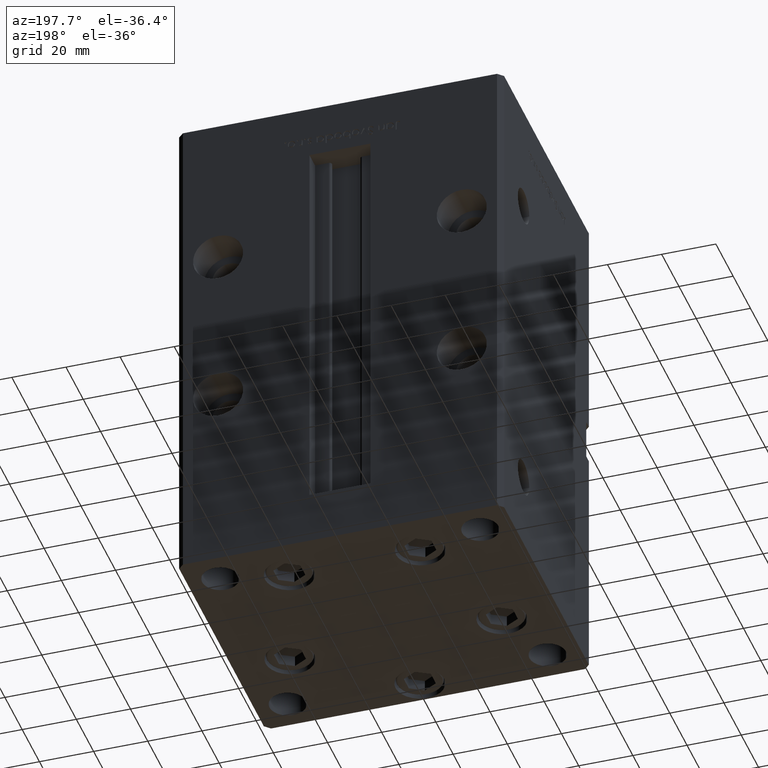
[diagram: clean part render]
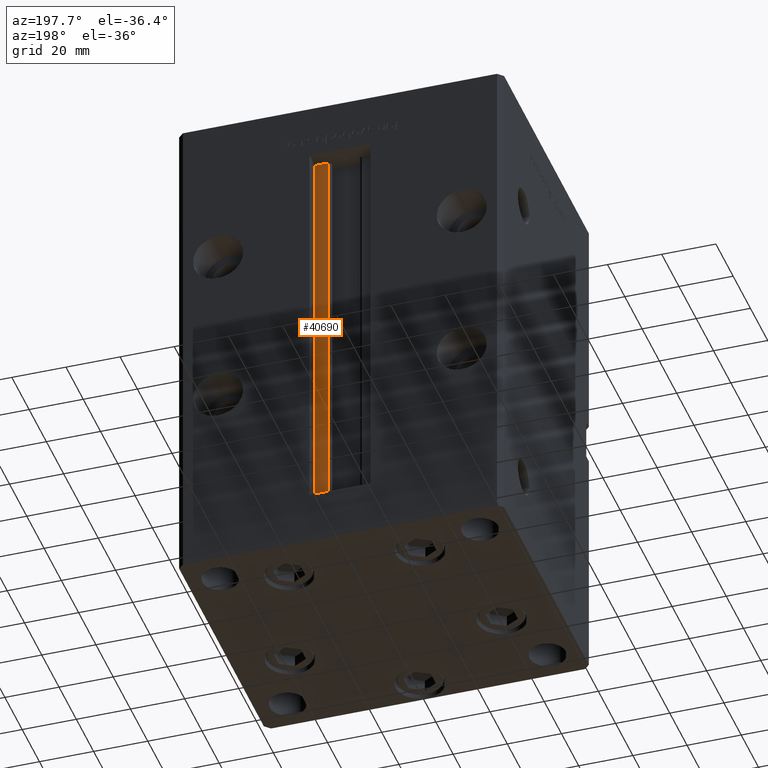
[diagram: same view with one face highlighted and labeled with its STEP entity id]
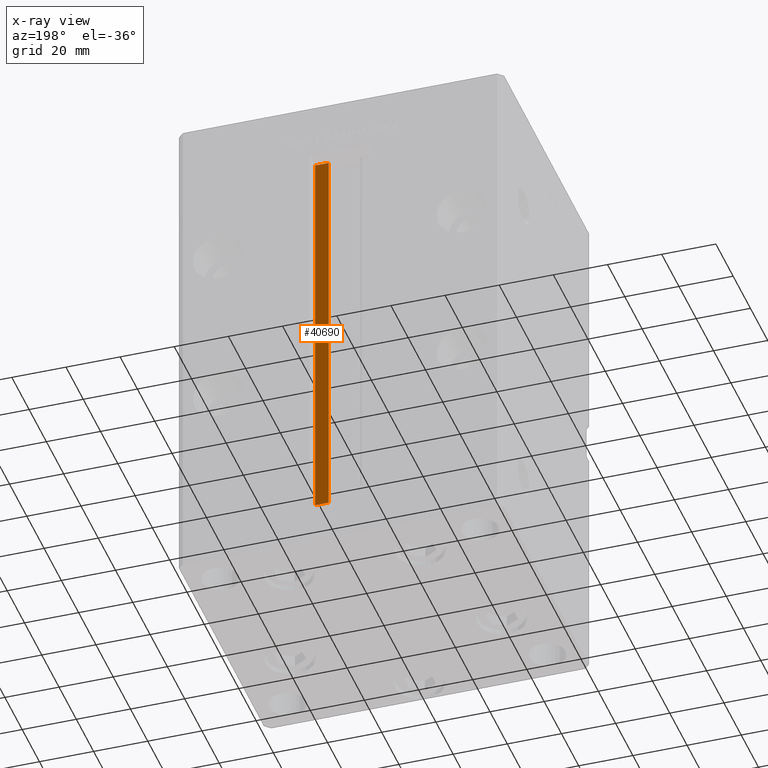
[diagram: x-ray of the same camera — body ghosted, the highlighted face saturated]
A machine part, auxiliary view. The second image highlights one B-rep face of the part: STEP entity #40690.
The next image is the same camera in x-ray: the body ghosted, the highlighted face saturated — about 0% of this face is hidden behind the body in this view.
In plain terms, the highlighted planar face has unit normal (0, -1, 0).
Its self-contained STEP definition (entity closure, byte-faithful):
#1000 = PLANE ( 'NONE',  #15140 ) ;
#1106 = DIRECTION ( 'NONE',  ( 1.000000000000000000, 0.000000000000000000, 0.000000000000000000 ) ) ;
#2779 = ORIENTED_EDGE ( 'NONE', *, *, #33234, .F. ) ;
#4222 = CARTESIAN_POINT ( 'NONE',  ( 11.24999999999999822, 44.50000000000000711, 0.000000000000000000 ) ) ;
#4984 = VERTEX_POINT ( 'NONE', #35562 ) ;
#9323 = FACE_OUTER_BOUND ( 'NONE', #34913, .T. ) ;
#11576 = EDGE_CURVE ( 'NONE', #42114, #30884, #17197, .T. ) ;
#12476 = EDGE_CURVE ( 'NONE', #42114, #49361, #13183, .T. ) ;
#12918 = LINE ( 'NONE', #21236, #47102 ) ;
#13183 = LINE ( 'NONE', #20969, #47427 ) ;
#15140 = AXIS2_PLACEMENT_3D ( 'NONE', #17358, #33711, #50110 ) ;
#17197 = LINE ( 'NONE', #20958, #34524 ) ;
#17358 = CARTESIAN_POINT ( 'NONE',  ( 6.183333333333997928, 44.50000000000000711, 0.000000000000000000 ) ) ;
#20055 = DIRECTION ( 'NONE',  ( -0.000000000000000000, -0.000000000000000000, 1.000000000000000000 ) ) ;
#20212 = CARTESIAN_POINT ( 'NONE',  ( 11.24999999999999822, 44.50000000000000711, 0.000000000000000000 ) ) ;
#20958 = CARTESIAN_POINT ( 'NONE',  ( 6.183333333333997928, 44.50000000000000711, 0.000000000000000000 ) ) ;
#20969 = CARTESIAN_POINT ( 'NONE',  ( 6.183333333333997928, 44.50000000000000711, 0.000000000000000000 ) ) ;
#21236 = CARTESIAN_POINT ( 'NONE',  ( 0.000000000000000000, 44.50000000000000711, 148.5000000000000000 ) ) ;
#25772 = VECTOR ( 'NONE', #20055, 1000.000000000000000 ) ;
#29105 = ORIENTED_EDGE ( 'NONE', *, *, #12476, .T. ) ;
#30884 = VERTEX_POINT ( 'NONE', #20212 ) ;
#32653 = ORIENTED_EDGE ( 'NONE', *, *, #51631, .F. ) ;
#33234 = EDGE_CURVE ( 'NONE', #4984, #49361, #12918, .T. ) ;
#33711 = DIRECTION ( 'NONE',  ( 0.000000000000000000, -1.000000000000000000, 0.000000000000000000 ) ) ;
#34524 = VECTOR ( 'NONE', #1106, 1000.000000000000000 ) ;
#34913 = EDGE_LOOP ( 'NONE', ( #32653, #35394, #29105, #2779 ) ) ;
#35394 = ORIENTED_EDGE ( 'NONE', *, *, #11576, .F. ) ;
#35562 = CARTESIAN_POINT ( 'NONE',  ( 11.24999999999999822, 44.50000000000000711, 148.5000000000000000 ) ) ;
#36679 = LINE ( 'NONE', #4222, #25772 ) ;
#39142 = CARTESIAN_POINT ( 'NONE',  ( 6.183333333333997928, 44.50000000000000711, 0.000000000000000000 ) ) ;
#40690 = ADVANCED_FACE ( 'NONE', ( #9323 ), #1000, .F. ) ;
#42114 = VERTEX_POINT ( 'NONE', #39142 ) ;
#47102 = VECTOR ( 'NONE', #50214, 1000.000000000000000 ) ;
#47427 = VECTOR ( 'NONE', #49171, 1000.000000000000000 ) ;
#49171 = DIRECTION ( 'NONE',  ( -0.000000000000000000, -0.000000000000000000, 1.000000000000000000 ) ) ;
#49361 = VERTEX_POINT ( 'NONE', #50220 ) ;
#50110 = DIRECTION ( 'NONE',  ( 0.000000000000000000, -0.000000000000000000, -1.000000000000000000 ) ) ;
#50214 = DIRECTION ( 'NONE',  ( -1.000000000000000000, 0.000000000000000000, 0.000000000000000000 ) ) ;
#50220 = CARTESIAN_POINT ( 'NONE',  ( 6.183333333333997928, 44.50000000000000711, 148.5000000000000000 ) ) ;
#51631 = EDGE_CURVE ( 'NONE', #30884, #4984, #36679, .T. ) ;